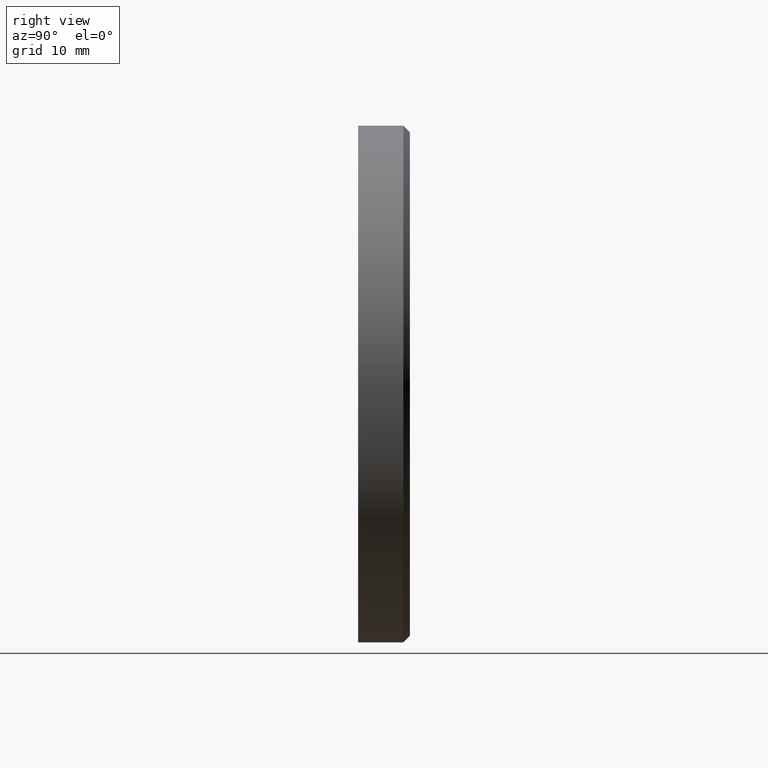
[diagram: clean part render]
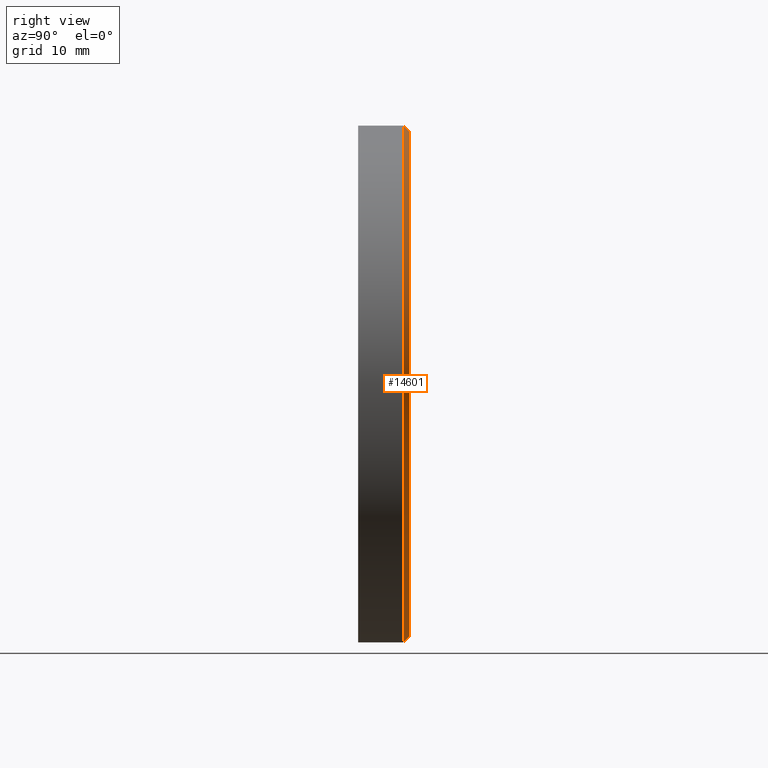
[diagram: same view with one face highlighted and labeled with its STEP entity id]
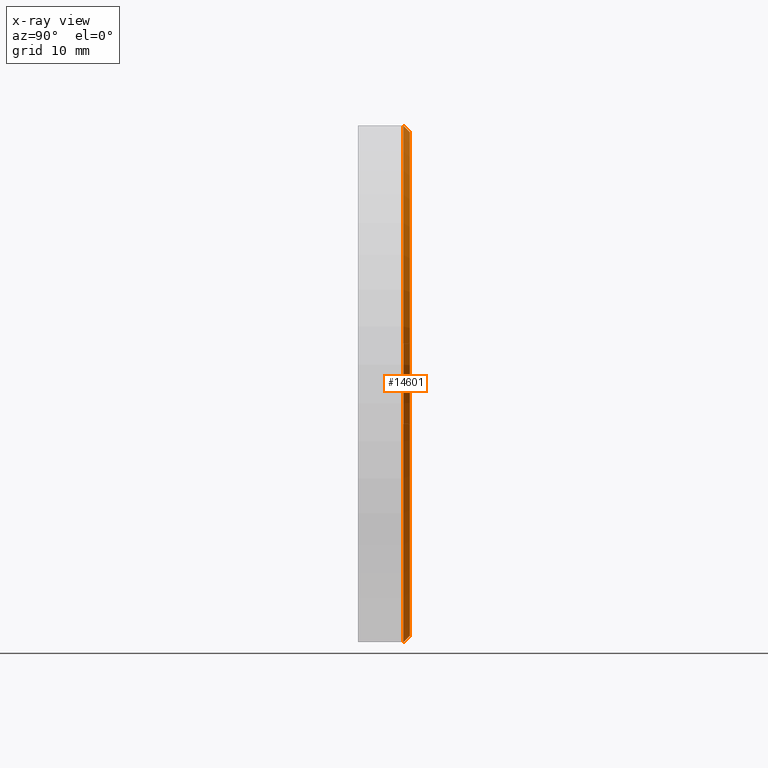
[diagram: x-ray of the same camera — body ghosted, the highlighted face saturated]
A machine part, right view. The second image highlights one B-rep face of the part: STEP entity #14601.
The next image is the same camera in x-ray: the body ghosted, the highlighted face saturated — about 0% of this face is hidden behind the body in this view.
In plain terms, the highlighted conical surface has half-angle 45 deg.
Its self-contained STEP definition (entity closure, byte-faithful):
#406 = DIRECTION ( 'NONE',  ( 0.000000000000000000, 1.000000000000000000, 0.000000000000000000 ) ) ;
#454 = ORIENTED_EDGE ( 'NONE', *, *, #14172, .F. ) ;
#886 = CIRCLE ( 'NONE', #17079, 39.00000000000002132 ) ;
#1555 = DIRECTION ( 'NONE',  ( 0.000000000000000000, -0.7071067811865524577, -0.7071067811865426878 ) ) ;
#2525 = EDGE_LOOP ( 'NONE', ( #454, #12227, #3389, #14880 ) ) ;
#2857 = VERTEX_POINT ( 'NONE', #5776 ) ;
#2929 = VERTEX_POINT ( 'NONE', #14006 ) ;
#3389 = ORIENTED_EDGE ( 'NONE', *, *, #10978, .F. ) ;
#3908 = DIRECTION ( 'NONE',  ( 0.000000000000000000, 0.000000000000000000, 1.000000000000000000 ) ) ;
#4111 = DIRECTION ( 'NONE',  ( 8.659560562354873694E-17, -0.7071067811865524577, 0.7071067811865426878 ) ) ;
#4270 = CARTESIAN_POINT ( 'NONE',  ( 0.000000000000000000, 8.000000000000000000, 0.000000000000000000 ) ) ;
#4592 = FACE_OUTER_BOUND ( 'NONE', #2525, .T. ) ;
#5014 = CONICAL_SURFACE ( 'NONE', #6675, 39.00000000000002132, 0.7853981633974415066 ) ;
#5466 = EDGE_CURVE ( 'NONE', #2857, #10188, #5671, .T. ) ;
#5524 = CARTESIAN_POINT ( 'NONE',  ( 0.000000000000000000, 8.000000000000000000, 0.000000000000000000 ) ) ;
#5671 = LINE ( 'NONE', #9537, #16500 ) ;
#5776 = CARTESIAN_POINT ( 'NONE',  ( 4.837354856632047030E-15, 8.000000000000000000, 39.00000000000002132 ) ) ;
#6675 = AXIS2_PLACEMENT_3D ( 'NONE', #5524, #7017, #13580 ) ;
#6729 = VECTOR ( 'NONE', #1555, 1000.000000000000000 ) ;
#6967 = CARTESIAN_POINT ( 'NONE',  ( 0.000000000000000000, 8.000000000000000000, -39.00000000000002132 ) ) ;
#7017 = DIRECTION ( 'NONE',  ( 0.000000000000000000, -1.000000000000000000, 0.000000000000000000 ) ) ;
#7409 = CARTESIAN_POINT ( 'NONE',  ( 0.000000000000000000, 8.000000000000000000, -39.00000000000002132 ) ) ;
#7901 = EDGE_CURVE ( 'NONE', #14742, #2929, #9002, .T. ) ;
#8948 = CIRCLE ( 'NONE', #12527, 40.00000000000000000 ) ;
#9002 = LINE ( 'NONE', #6967, #6729 ) ;
#9293 = DIRECTION ( 'NONE',  ( 0.000000000000000000, -1.000000000000000000, 0.000000000000000000 ) ) ;
#9431 = DIRECTION ( 'NONE',  ( 0.000000000000000000, 0.000000000000000000, 1.000000000000000000 ) ) ;
#9537 = CARTESIAN_POINT ( 'NONE',  ( 4.776122516674680244E-15, 8.000000000000000000, 39.00000000000002132 ) ) ;
#10188 = VERTEX_POINT ( 'NONE', #14091 ) ;
#10978 = EDGE_CURVE ( 'NONE', #2929, #10188, #8948, .T. ) ;
#12227 = ORIENTED_EDGE ( 'NONE', *, *, #5466, .T. ) ;
#12527 = AXIS2_PLACEMENT_3D ( 'NONE', #17003, #9293, #3908 ) ;
#13580 = DIRECTION ( 'NONE',  ( 0.000000000000000000, 0.000000000000000000, -1.000000000000000000 ) ) ;
#14006 = CARTESIAN_POINT ( 'NONE',  ( 0.000000000000000000, 7.000000000000006217, -40.00000000000000000 ) ) ;
#14091 = CARTESIAN_POINT ( 'NONE',  ( 4.898587196589413026E-15, 7.000000000000006217, 40.00000000000000000 ) ) ;
#14172 = EDGE_CURVE ( 'NONE', #2857, #14742, #886, .T. ) ;
#14601 = ADVANCED_FACE ( 'NONE', ( #4592 ), #5014, .T. ) ;
#14742 = VERTEX_POINT ( 'NONE', #7409 ) ;
#14880 = ORIENTED_EDGE ( 'NONE', *, *, #7901, .F. ) ;
#16500 = VECTOR ( 'NONE', #4111, 1000.000000000000000 ) ;
#17003 = CARTESIAN_POINT ( 'NONE',  ( 0.000000000000000000, 7.000000000000006217, 0.000000000000000000 ) ) ;
#17079 = AXIS2_PLACEMENT_3D ( 'NONE', #4270, #406, #9431 ) ;